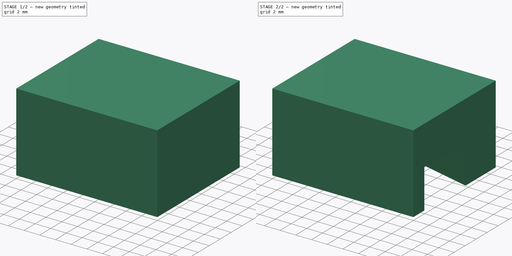
[diagram: build sequence overview — one tinted view per stage of 2, left to right]
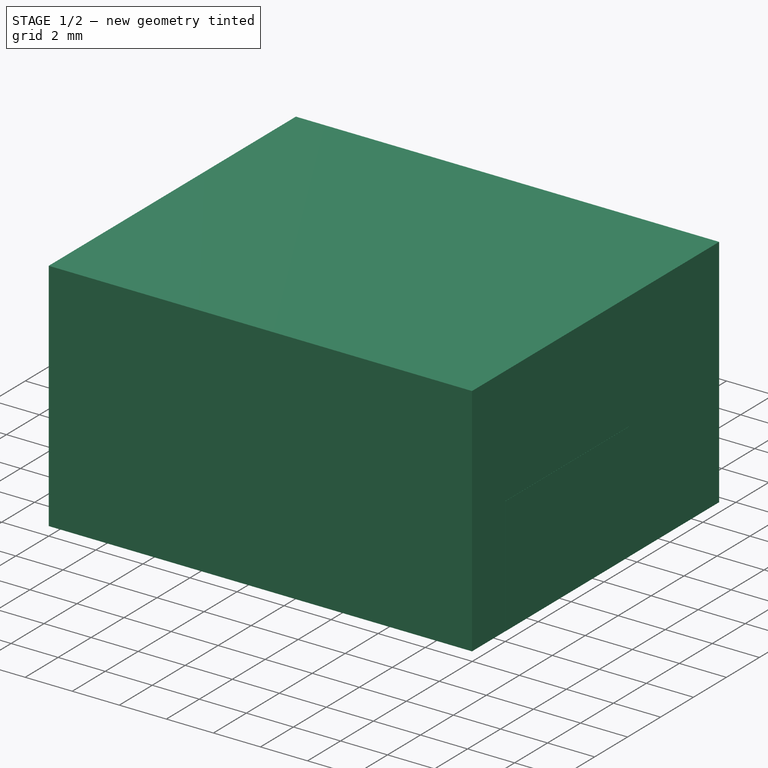
[diagram: stage 1 of 2 — iso view after this stage's code; geometry added in this stage tinted green]
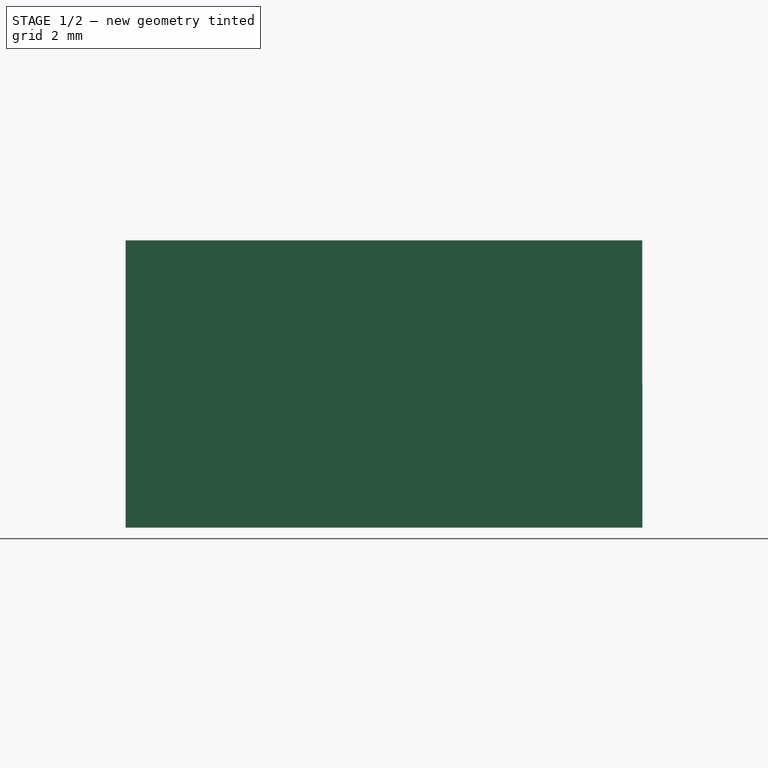
[diagram: stage 1 of 2 — front view after this stage's code; geometry added in this stage tinted green]
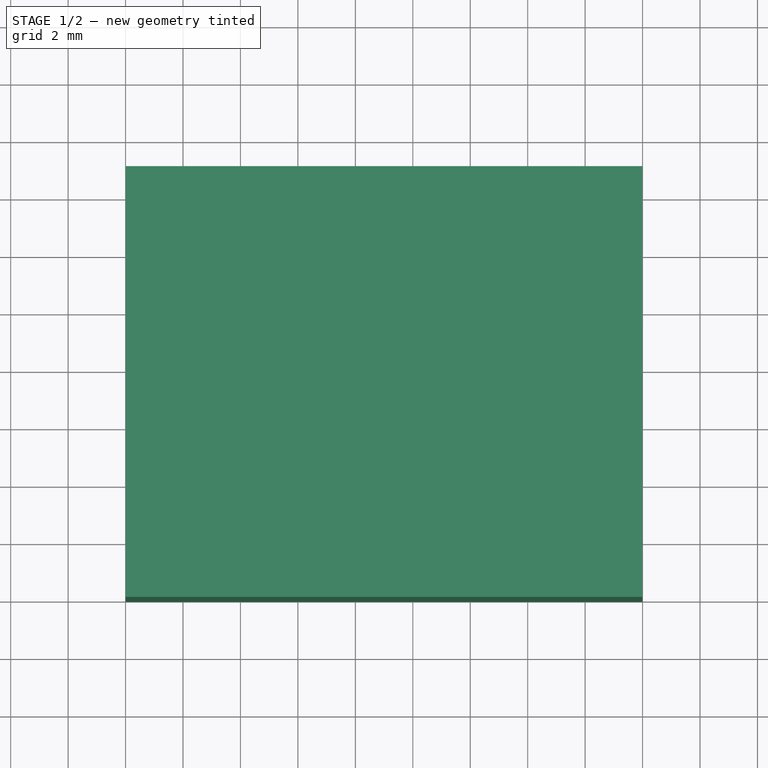
[diagram: stage 1 of 2 — top view after this stage's code; geometry added in this stage tinted green]
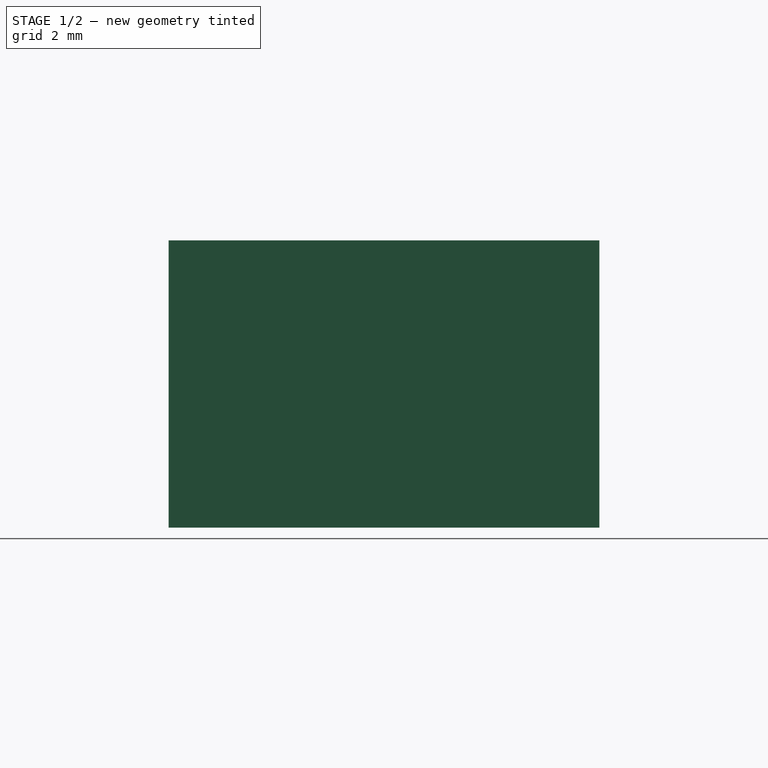
[diagram: stage 1 of 2 — right view after this stage's code; geometry added in this stage tinted green]
FCSTD DOCUMENT  (FreeCAD 0.19R)
Label: CaliperHeads
License: All rights reserved
LicenseURL: http://en.wikipedia.org/wiki/All_rights_reserved
objects: Sketcher::SketchObject×1, PartDesign::Pad×1, PartDesign::Body×1, Part::Box×1, Part::Cut×1
note: 6 computed .brp shape members not serialized (recipe doc carries the construction recipe); baked Part::Feature solids carry a one-line shape summary decoded from their .brp

FEATURE [Sketcher::SketchObject] Sketch
  FullyConstrained = true
  Placement = pos=(0,0,0) rot=(0,0,1;3.14159rad)
  sketch-geometry (4):
    g0: LineSegment StartX=0 StartY=0 StartZ=0 EndX=0 EndY=-12 EndZ=0
    g1: LineSegment StartX=0 StartY=-12 StartZ=0 EndX=-17.995 EndY=-7.5 EndZ=0
    g2: LineSegment StartX=-17.995 StartY=-7.5 StartZ=0 EndX=-17.995 EndY=0 EndZ=0
    g3: LineSegment StartX=-17.995 StartY=0 StartZ=0 EndX=0 EndY=0 EndZ=0
  constraints (11):
    c: Vertical(g2)
    c: Vertical(g0)
    c: Horizontal(g3)
    c: Coincident(g0,g3)
    c: Coincident(g0,g-1)
    c: Coincident(g2,g3)
    c: Coincident(g1,g2)
    c: Coincident(g0,g1)
    c: Angle(g1,g2) = 1.81584
    c: DistanceY(g0,g0) = 12
    c: DistanceY(g2,g2) = 7.5
FEATURE [PartDesign::Pad] Pad
  Direction = (1,1,1)
  Length = 5
  Length2 = 100
  Placement = pos=(0,0,0) rot=(0,0,1;3.14159rad)
  Profile = -> Sketch
  Type = 0
FEATURE [PartDesign::Body] Body  label="150mmBody"
  Group = -> [Sketch,Pad]
  Origin = -> Origin
  Tip = -> Pad
FEATURE [Part::Box] Box  label="Cube"
  AttacherType = Attacher::AttachEngine3D
  Height = 10
  Length = 17.99
  Placement = pos=(0,-2,0) rot=(0,0,1;0rad)
  Width = 15
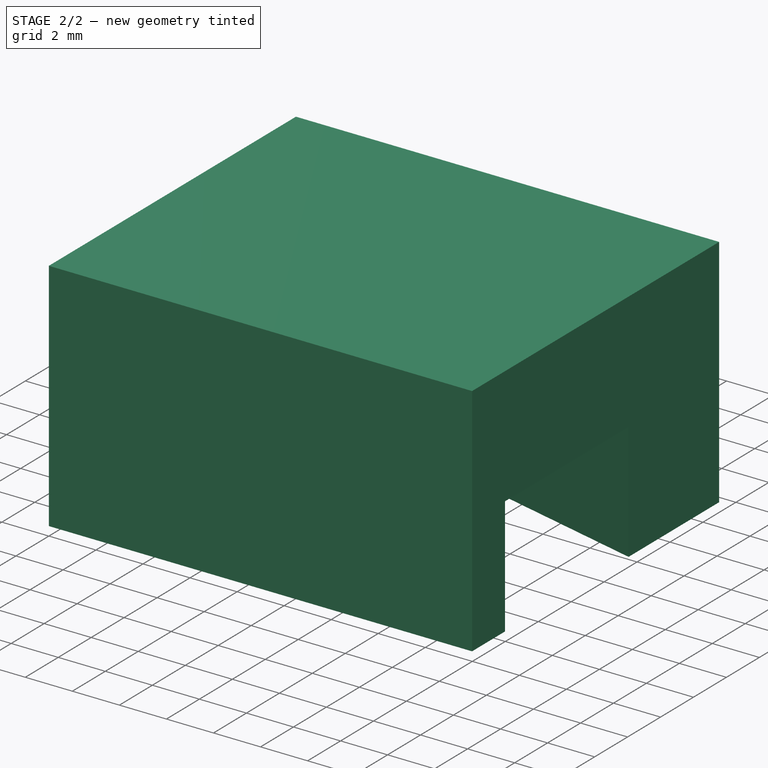
[diagram: stage 2 of 2 — iso view after this stage's code; geometry added in this stage tinted green]
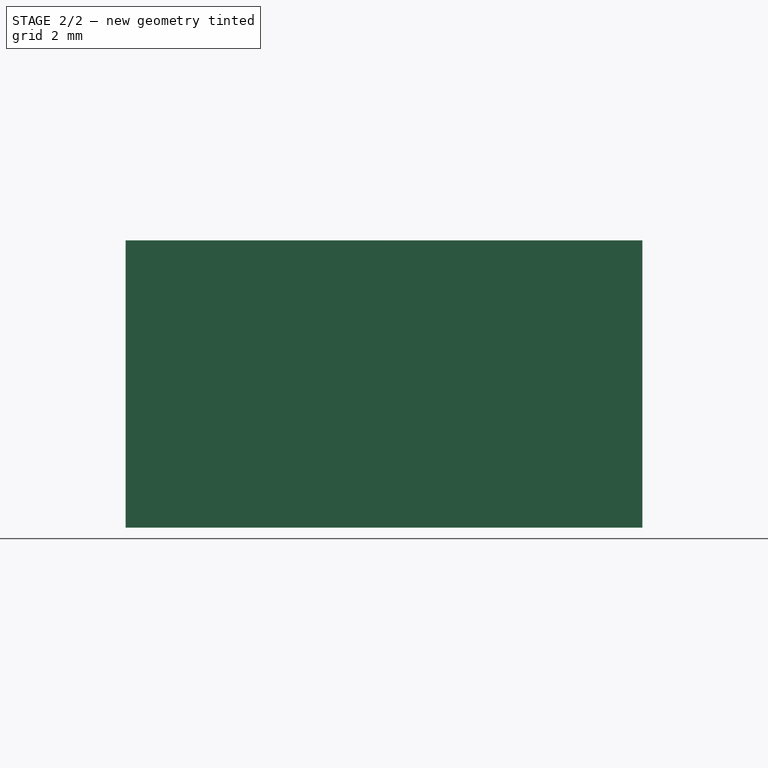
[diagram: stage 2 of 2 — front view after this stage's code; geometry added in this stage tinted green]
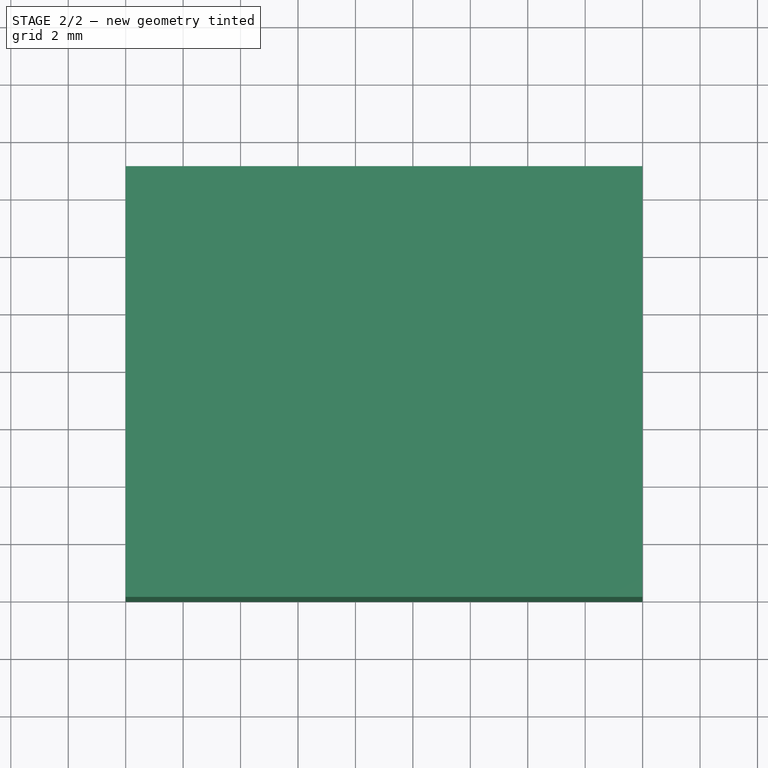
[diagram: stage 2 of 2 — top view after this stage's code; geometry added in this stage tinted green]
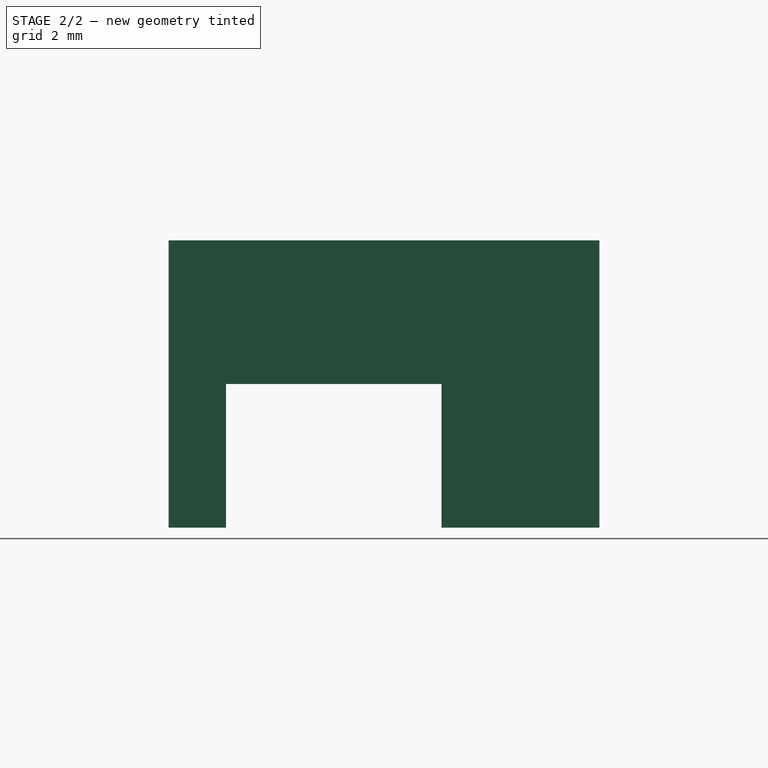
[diagram: stage 2 of 2 — right view after this stage's code; geometry added in this stage tinted green]
FEATURE [Part::Cut] Cut  label="150mm"
  Base = -> Box
  Tool = -> Body
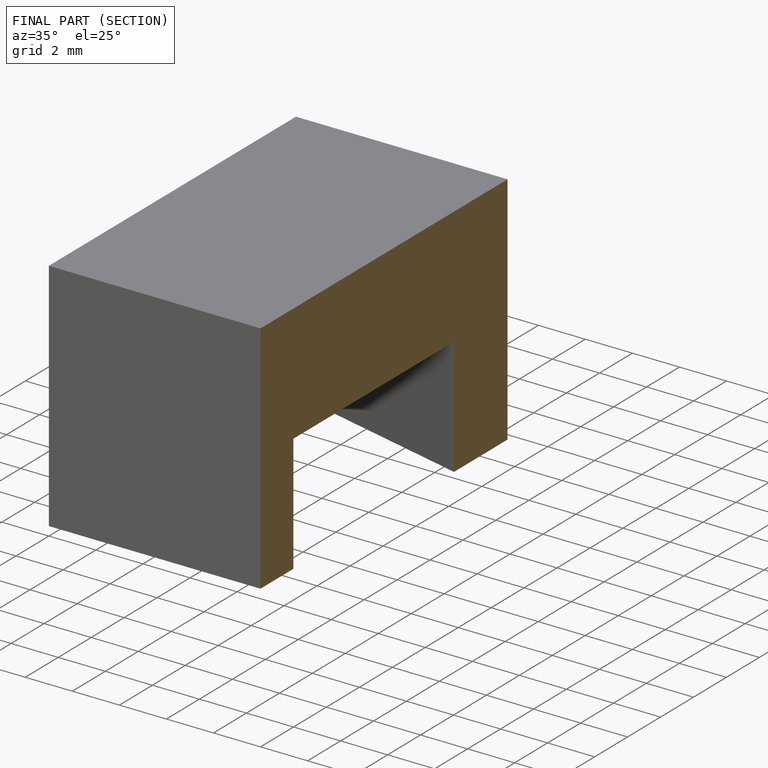
[diagram: finished part — half-section view (interior)]
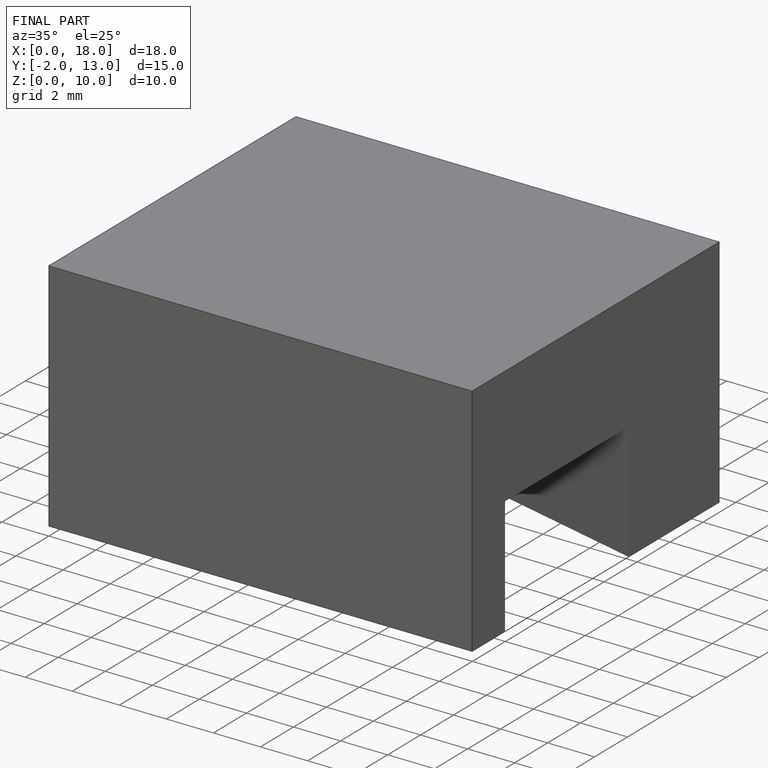
[diagram: finished part — iso view with bounding-box wireframe]
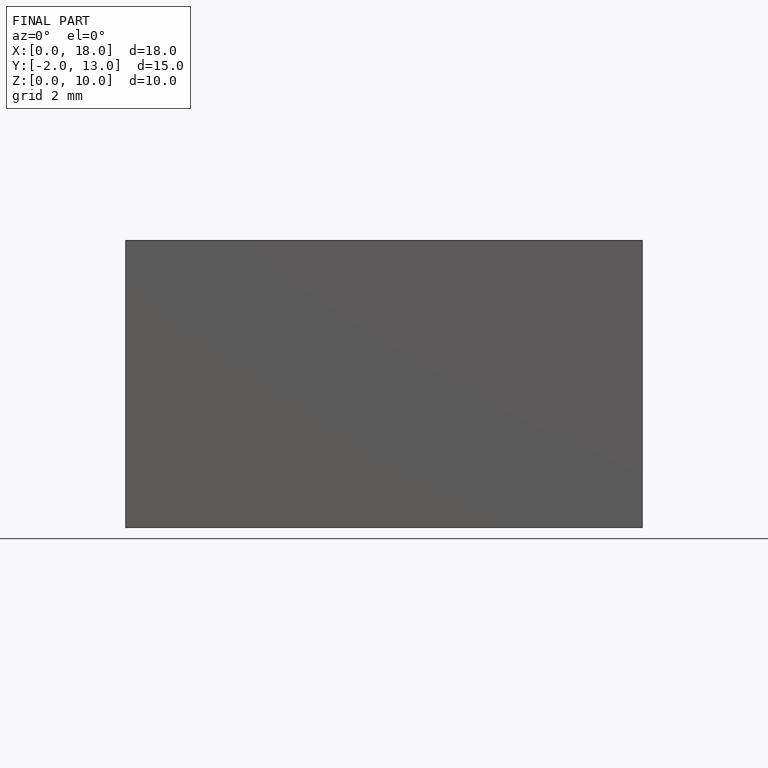
[diagram: finished part — front view with bounding-box wireframe]
